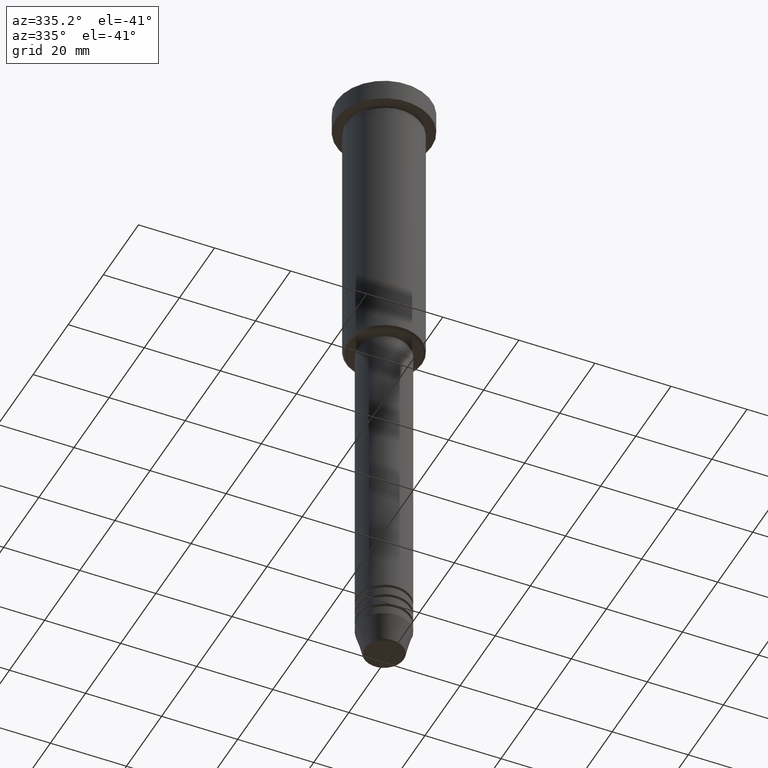
[diagram: clean part render]
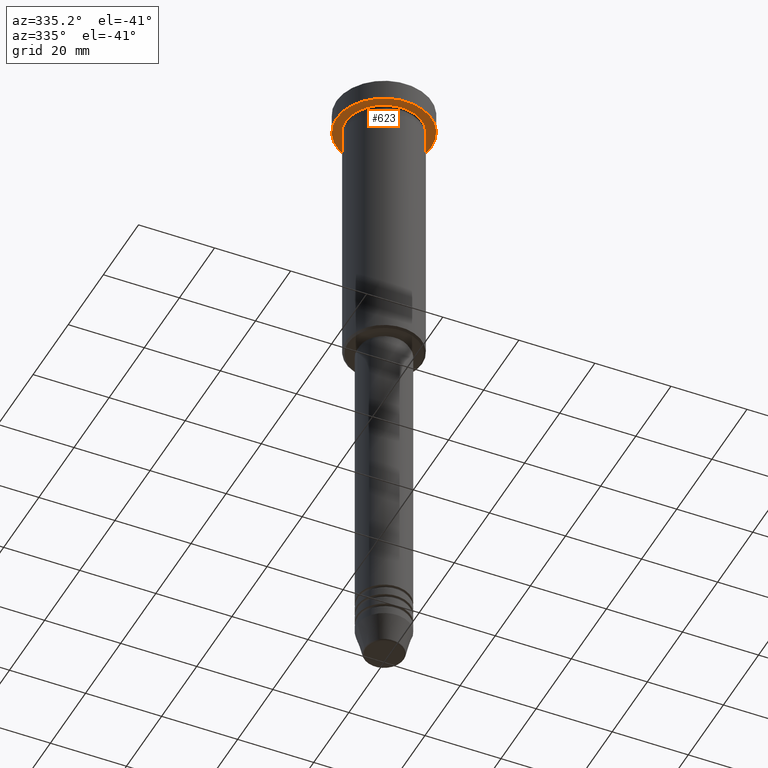
[diagram: same view with one face highlighted and labeled with its STEP entity id]
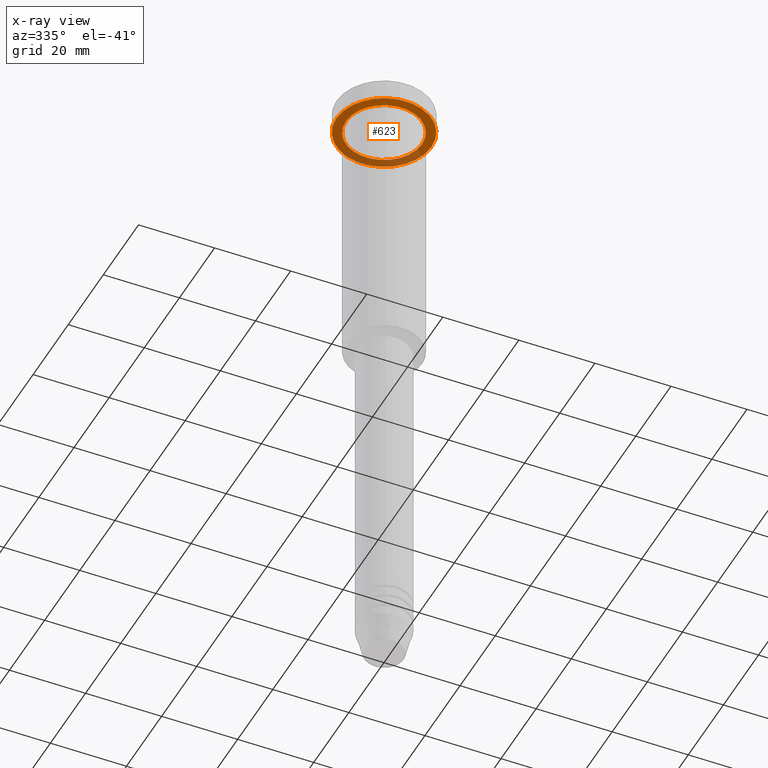
[diagram: x-ray of the same camera — body ghosted, the highlighted face saturated]
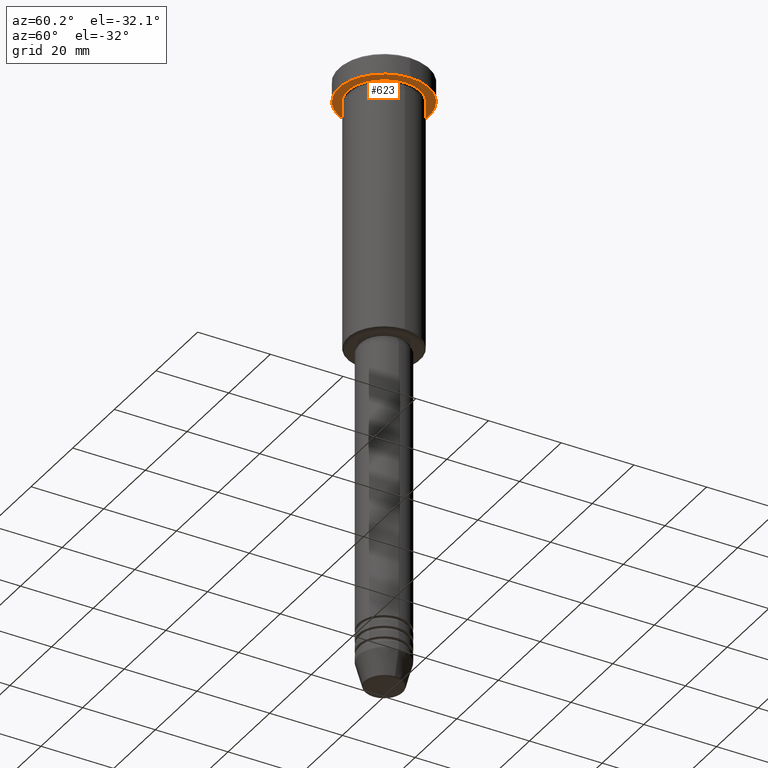
[diagram: same view with one face highlighted and labeled with its STEP entity id]
A machine part, auxiliary view. The second image highlights one B-rep face of the part: STEP entity #623.
The next image is the same camera in x-ray: the body ghosted, the highlighted face saturated — about 28% of this face is hidden behind the body in this view.
A second angle (auxiliary view) of the same face is appended — the face is thin or edge-on in the first view.
In plain terms, the highlighted planar face has unit normal (0, 0, -1).
Its self-contained STEP definition (entity closure, byte-faithful):
#8 = AXIS2_PLACEMENT_3D ( 'NONE', #916, #823, #1096 ) ;
#31 = DIRECTION ( 'NONE',  ( -1.000000000000000000, 0.000000000000000000, 0.000000000000000000 ) ) ;
#56 = EDGE_LOOP ( 'NONE', ( #77, #517 ) ) ;
#58 = CARTESIAN_POINT ( 'NONE',  ( -10.00000000000000000, 0.000000000000000000, -5.999999999999996447 ) ) ;
#59 = CARTESIAN_POINT ( 'NONE',  ( 0.000000000000000000, 0.000000000000000000, -5.999999999999996447 ) ) ;
#77 = ORIENTED_EDGE ( 'NONE', *, *, #1014, .T. ) ;
#167 = VERTEX_POINT ( 'NONE', #899 ) ;
#187 = EDGE_CURVE ( 'NONE', #875, #167, #865, .T. ) ;
#228 = DIRECTION ( 'NONE',  ( 0.000000000000000000, 0.000000000000000000, -1.000000000000000000 ) ) ;
#269 = AXIS2_PLACEMENT_3D ( 'NONE', #709, #1094, #1080 ) ;
#415 = FACE_BOUND ( 'NONE', #56, .T. ) ;
#466 = CARTESIAN_POINT ( 'NONE',  ( 10.00000000000000000, 1.224646799147353256E-15, -5.999999999999996447 ) ) ;
#517 = ORIENTED_EDGE ( 'NONE', *, *, #1103, .T. ) ;
#525 = VERTEX_POINT ( 'NONE', #466 ) ;
#530 = EDGE_CURVE ( 'NONE', #167, #875, #563, .T. ) ;
#535 = DIRECTION ( 'NONE',  ( -0.000000000000000000, -0.000000000000000000, 1.000000000000000000 ) ) ;
#563 = CIRCLE ( 'NONE', #8, 12.50000000000000000 ) ;
#623 = ADVANCED_FACE ( 'NONE', ( #415, #988 ), #995, .T. ) ;
#636 = DIRECTION ( 'NONE',  ( -1.000000000000000000, 0.000000000000000000, -0.000000000000000000 ) ) ;
#657 = ORIENTED_EDGE ( 'NONE', *, *, #530, .F. ) ;
#709 = CARTESIAN_POINT ( 'NONE',  ( 0.000000000000000000, 0.000000000000000000, -5.999999999999996447 ) ) ;
#719 = CARTESIAN_POINT ( 'NONE',  ( 0.000000000000000000, 12.50000000000000000, -5.999999999999996447 ) ) ;
#767 = AXIS2_PLACEMENT_3D ( 'NONE', #966, #1031, #31 ) ;
#806 = DIRECTION ( 'NONE',  ( -1.000000000000000000, 0.000000000000000000, 0.000000000000000000 ) ) ;
#808 = CARTESIAN_POINT ( 'NONE',  ( -12.50000000000000000, 1.530808498934191521E-15, -5.999999999999996447 ) ) ;
#823 = DIRECTION ( 'NONE',  ( -0.000000000000000000, -0.000000000000000000, 1.000000000000000000 ) ) ;
#832 = EDGE_LOOP ( 'NONE', ( #657, #960 ) ) ;
#864 = VERTEX_POINT ( 'NONE', #58 ) ;
#865 = CIRCLE ( 'NONE', #269, 12.50000000000000000 ) ;
#875 = VERTEX_POINT ( 'NONE', #808 ) ;
#899 = CARTESIAN_POINT ( 'NONE',  ( 12.50000000000000000, 0.000000000000000000, -5.999999999999996447 ) ) ;
#916 = CARTESIAN_POINT ( 'NONE',  ( 0.000000000000000000, 0.000000000000000000, -5.999999999999996447 ) ) ;
#960 = ORIENTED_EDGE ( 'NONE', *, *, #187, .F. ) ;
#966 = CARTESIAN_POINT ( 'NONE',  ( 0.000000000000000000, 0.000000000000000000, -5.999999999999996447 ) ) ;
#988 = FACE_OUTER_BOUND ( 'NONE', #832, .T. ) ;
#995 = PLANE ( 'NONE',  #1124 ) ;
#1014 = EDGE_CURVE ( 'NONE', #864, #525, #1111, .T. ) ;
#1031 = DIRECTION ( 'NONE',  ( -0.000000000000000000, -0.000000000000000000, 1.000000000000000000 ) ) ;
#1036 = AXIS2_PLACEMENT_3D ( 'NONE', #59, #535, #806 ) ;
#1055 = CIRCLE ( 'NONE', #1036, 10.00000000000000000 ) ;
#1080 = DIRECTION ( 'NONE',  ( 1.000000000000000000, 0.000000000000000000, 0.000000000000000000 ) ) ;
#1094 = DIRECTION ( 'NONE',  ( -0.000000000000000000, -0.000000000000000000, 1.000000000000000000 ) ) ;
#1096 = DIRECTION ( 'NONE',  ( 1.000000000000000000, 0.000000000000000000, 0.000000000000000000 ) ) ;
#1103 = EDGE_CURVE ( 'NONE', #525, #864, #1055, .T. ) ;
#1111 = CIRCLE ( 'NONE', #767, 10.00000000000000000 ) ;
#1124 = AXIS2_PLACEMENT_3D ( 'NONE', #719, #228, #636 ) ;